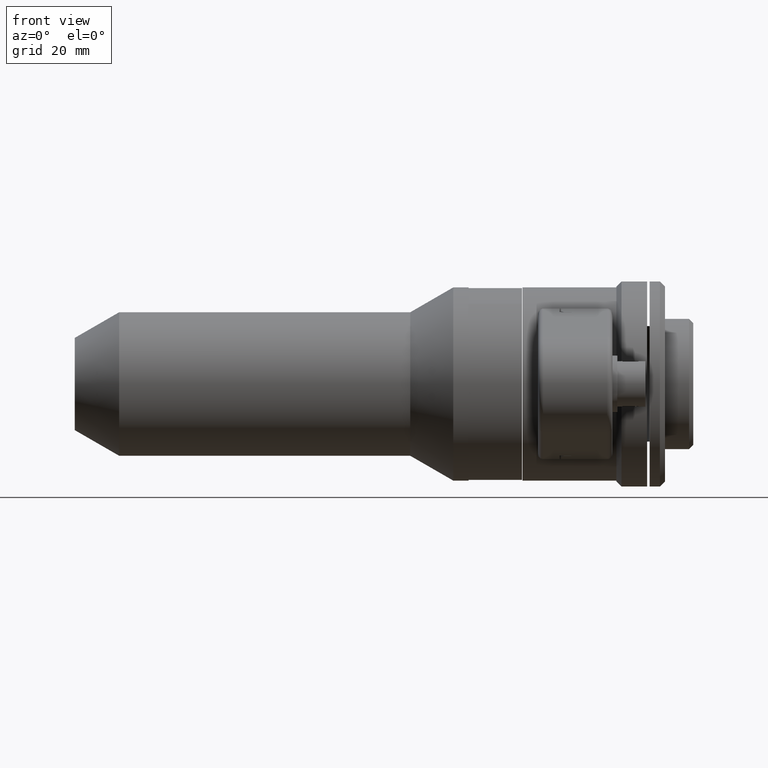
[diagram: clean part render]
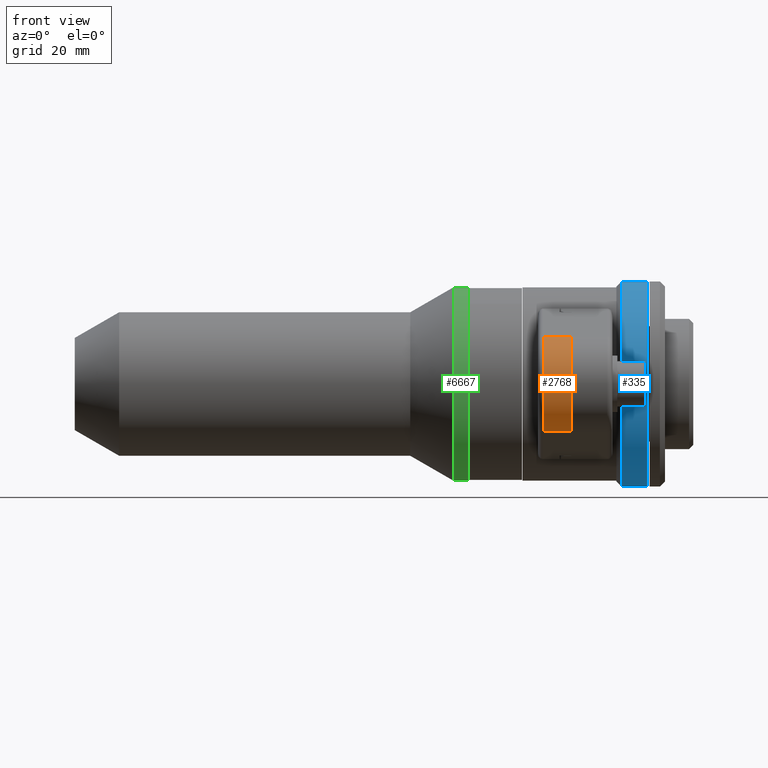
[diagram: same view with three faces highlighted in distinct colors, each labeled with its STEP entity id]
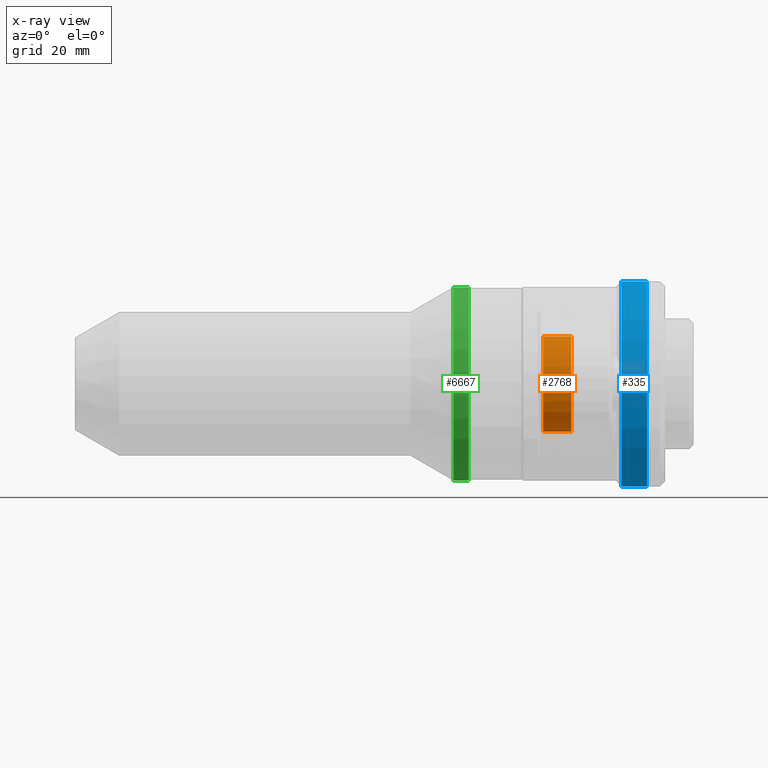
[diagram: x-ray of the same camera — body ghosted, the three highlighted faces saturated]
A machine part, front view with three faces highlighted in distinct colors.
The next image is the same camera in x-ray (body ghosted, the three faces saturated) — at least one of them is partly hidden behind the body in this view.
Their STEP definitions:

[orange] entity #2768 — the highlighted cylindrical surface (partial cylindrical patch) has radius 9.5 mm, axis along (1, -0, -0).
#253 = DIRECTION ( 'NONE',  ( 0.0000000000000000000, -4.086427640349665552E-05, -0.9999999991650554421 ) ) ;
#254 = EDGE_LOOP ( 'NONE', ( #3627, #4351, #1099, #5254 ) ) ;
#459 = CARTESIAN_POINT ( 'NONE',  ( 96.78674100000000635, -35.41589191497096323, 0.001447244797461721966 ) ) ;
#495 = DIRECTION ( 'NONE',  ( 1.000000000000000000, -6.066886243083689077E-24, -5.551114434090462289E-17 ) ) ;
#669 = VERTEX_POINT ( 'NONE', #6621 ) ;
#924 = CIRCLE ( 'NONE', #7816, 9.500000000000007105 ) ;
#1021 = VERTEX_POINT ( 'NONE', #3463 ) ;
#1099 = ORIENTED_EDGE ( 'NONE', *, *, #5951, .T. ) ;
#1292 = EDGE_CURVE ( 'NONE', #1021, #1778, #1467, .T. ) ;
#1303 = CARTESIAN_POINT ( 'NONE',  ( 91.78674100000000635, -37.45463727543159393, -9.277211998606212262 ) ) ;
#1462 = DIRECTION ( 'NONE',  ( 0.0000000000000000000, 4.086427640349665552E-05, 0.9999999991650554421 ) ) ;
#1467 = CIRCLE ( 'NONE', #7832, 9.500000000000007105 ) ;
#1649 = CARTESIAN_POINT ( 'NONE',  ( 96.78674100000000635, -37.45387893723130190, 9.280273080920158790 ) ) ;
#1778 = VERTEX_POINT ( 'NONE', #5892 ) ;
#2670 = CARTESIAN_POINT ( 'NONE',  ( 91.28674100000000635, -35.41589191497096323, 0.001447244797454783072 ) ) ;
#2768 = ADVANCED_FACE ( 'NONE', ( #7929 ), #4737, .T. ) ;
#2888 = VERTEX_POINT ( 'NONE', #1649 ) ;
#2991 = DIRECTION ( 'NONE',  ( 0.0000000000000000000, -4.086427640349665552E-05, -0.9999999991650554421 ) ) ;
#3361 = DIRECTION ( 'NONE',  ( 1.000000000000000000, -6.066886243083689077E-24, -5.551114434090462289E-17 ) ) ;
#3365 = LINE ( 'NONE', #4819, #6432 ) ;
#3463 = CARTESIAN_POINT ( 'NONE',  ( 91.28674100000000635, -37.45387893723130190, 9.280273080920158790 ) ) ;
#3486 = CARTESIAN_POINT ( 'NONE',  ( 91.78674100000000635, -35.41589191497096323, 0.001447244797461721966 ) ) ;
#3627 = ORIENTED_EDGE ( 'NONE', *, *, #5419, .F. ) ;
#3837 = DIRECTION ( 'NONE',  ( 1.000000000000000000, -6.066886243083689077E-24, -5.551114434090462289E-17 ) ) ;
#4278 = DIRECTION ( 'NONE',  ( 1.000000000000000000, -6.066886243083689077E-24, -5.551114434090462289E-17 ) ) ;
#4351 = ORIENTED_EDGE ( 'NONE', *, *, #1292, .T. ) ;
#4573 = AXIS2_PLACEMENT_3D ( 'NONE', #3486, #3361, #253 ) ;
#4628 = LINE ( 'NONE', #1303, #5817 ) ;
#4737 = CYLINDRICAL_SURFACE ( 'NONE', #4573, 9.500000000000007105 ) ;
#4819 = CARTESIAN_POINT ( 'NONE',  ( 91.78674100000000635, -37.45387893723130190, 9.280273080920158790 ) ) ;
#5254 = ORIENTED_EDGE ( 'NONE', *, *, #6570, .F. ) ;
#5419 = EDGE_CURVE ( 'NONE', #1021, #2888, #3365, .T. ) ;
#5817 = VECTOR ( 'NONE', #3837, 1000.000000000000000 ) ;
#5892 = CARTESIAN_POINT ( 'NONE',  ( 91.28674100000000635, -37.45463727543159393, -9.277211998606226473 ) ) ;
#5951 = EDGE_CURVE ( 'NONE', #1778, #669, #4628, .T. ) ;
#6432 = VECTOR ( 'NONE', #495, 1000.000000000000000 ) ;
#6476 = DIRECTION ( 'NONE',  ( 1.000000000000000000, -6.066886243083689077E-24, -5.551114434090462289E-17 ) ) ;
#6570 = EDGE_CURVE ( 'NONE', #2888, #669, #924, .T. ) ;
#6621 = CARTESIAN_POINT ( 'NONE',  ( 96.78674100000000635, -37.45463727543159393, -9.277211998606212262 ) ) ;
#7816 = AXIS2_PLACEMENT_3D ( 'NONE', #459, #4278, #2991 ) ;
#7832 = AXIS2_PLACEMENT_3D ( 'NONE', #2670, #6476, #1462 ) ;
#7929 = FACE_OUTER_BOUND ( 'NONE', #254, .T. ) ;

[blue] entity #335 — the highlighted cylindrical surface (partial cylindrical patch) has radius 20 mm, axis along (1, -0, -0).
#152 = ORIENTED_EDGE ( 'NONE', *, *, #3266, .T. ) ;
#335 = ADVANCED_FACE ( 'NONE', ( #6016 ), #4164, .T. ) ;
#357 = DIRECTION ( 'NONE',  ( 0.0000000000000000000, -2.708338984294550418E-33, -1.000000000000000000 ) ) ;
#492 = LINE ( 'NONE', #3024, #1129 ) ;
#536 = VERTEX_POINT ( 'NONE', #6331 ) ;
#895 = DIRECTION ( 'NONE',  ( 1.000000000000000000, -2.455222655423290339E-17, -1.618727496831748947E-17 ) ) ;
#1129 = VECTOR ( 'NONE', #5547, 1000.000000000000000 ) ;
#1470 = AXIS2_PLACEMENT_3D ( 'NONE', #2973, #5497, #357 ) ;
#1480 = CARTESIAN_POINT ( 'NONE',  ( 106.5667410000000217, 2.498398051403173010E-15, 20.00000000000000000 ) ) ;
#1654 = LINE ( 'NONE', #2783, #5475 ) ;
#1709 = ORIENTED_EDGE ( 'NONE', *, *, #8186, .T. ) ;
#2508 = EDGE_CURVE ( 'NONE', #7400, #536, #3387, .T. ) ;
#2628 = EDGE_CURVE ( 'NONE', #7289, #7400, #492, .T. ) ;
#2710 = CARTESIAN_POINT ( 'NONE',  ( 111.5667410000000217, -7.365667966269816784E-17, -4.856182490495257010E-17 ) ) ;
#2783 = CARTESIAN_POINT ( 'NONE',  ( 111.5667410000000217, -7.365667966269822947E-17, -20.00000000000000000 ) ) ;
#2906 = DIRECTION ( 'NONE',  ( 1.000000000000000000, -2.455222655423290339E-17, -1.618727496831748947E-17 ) ) ;
#2966 = EDGE_LOOP ( 'NONE', ( #3569, #152, #1709, #4568 ) ) ;
#2973 = CARTESIAN_POINT ( 'NONE',  ( 106.5667410000000217, 4.910445310846646623E-17, 3.237454993663494812E-17 ) ) ;
#3024 = CARTESIAN_POINT ( 'NONE',  ( 111.5667410000000217, 2.375636918632008148E-15, 20.00000000000000000 ) ) ;
#3266 = EDGE_CURVE ( 'NONE', #7289, #7847, #6892, .T. ) ;
#3387 = CIRCLE ( 'NONE', #6689, 20.00000000000000000 ) ;
#3569 = ORIENTED_EDGE ( 'NONE', *, *, #2628, .F. ) ;
#3593 = CARTESIAN_POINT ( 'NONE',  ( 111.5667410000000217, 2.437017485017590776E-15, 20.00000000000000000 ) ) ;
#3997 = DIRECTION ( 'NONE',  ( 1.000000000000000000, -2.455222655423290339E-17, -1.618727496831748947E-17 ) ) ;
#4164 = CYLINDRICAL_SURFACE ( 'NONE', #7369, 20.00000000000000000 ) ;
#4568 = ORIENTED_EDGE ( 'NONE', *, *, #2508, .F. ) ;
#5403 = DIRECTION ( 'NONE',  ( 0.0000000000000000000, -3.009265538105056020E-33, -1.000000000000000000 ) ) ;
#5475 = VECTOR ( 'NONE', #2906, 1000.000000000000000 ) ;
#5497 = DIRECTION ( 'NONE',  ( 1.000000000000000000, -2.455222655423290339E-17, -1.618727496831748947E-17 ) ) ;
#5547 = DIRECTION ( 'NONE',  ( 1.000000000000000000, -2.455222655423290339E-17, -1.618727496831748947E-17 ) ) ;
#6016 = FACE_OUTER_BOUND ( 'NONE', #2966, .T. ) ;
#6331 = CARTESIAN_POINT ( 'NONE',  ( 111.5667410000000217, -7.365667966269822947E-17, -20.00000000000000000 ) ) ;
#6566 = CARTESIAN_POINT ( 'NONE',  ( 111.5667410000000217, -7.365667966269816784E-17, -4.856182490495257010E-17 ) ) ;
#6689 = AXIS2_PLACEMENT_3D ( 'NONE', #2710, #3997, #7776 ) ;
#6892 = CIRCLE ( 'NONE', #1470, 20.00000000000000000 ) ;
#7289 = VERTEX_POINT ( 'NONE', #1480 ) ;
#7369 = AXIS2_PLACEMENT_3D ( 'NONE', #6566, #895, #5403 ) ;
#7400 = VERTEX_POINT ( 'NONE', #3593 ) ;
#7776 = DIRECTION ( 'NONE',  ( 0.0000000000000000000, -3.009265538105056020E-33, -1.000000000000000000 ) ) ;
#7847 = VERTEX_POINT ( 'NONE', #7859 ) ;
#7859 = CARTESIAN_POINT ( 'NONE',  ( 106.5667410000000217, 4.910445310846625052E-17, -20.00000000000000000 ) ) ;
#8186 = EDGE_CURVE ( 'NONE', #7847, #536, #1654, .T. ) ;

[green] entity #6667 — the highlighted cylindrical surface (partial cylindrical patch) has radius 18.85 mm, axis along (-1, 0, 0).
#122 = FACE_OUTER_BOUND ( 'NONE', #1677, .T. ) ;
#311 = CIRCLE ( 'NONE', #5209, 18.85000000000000142 ) ;
#502 = DIRECTION ( 'NONE',  ( 0.0000000000000000000, 0.0000000000000000000, 1.000000000000000000 ) ) ;
#542 = DIRECTION ( 'NONE',  ( -1.000000000000000000, 0.0000000000000000000, 0.0000000000000000000 ) ) ;
#554 = VERTEX_POINT ( 'NONE', #5051 ) ;
#914 = CARTESIAN_POINT ( 'NONE',  ( 76.75334641670902158, 0.0000000000000000000, 1.232595164407830946E-29 ) ) ;
#1349 = VECTOR ( 'NONE', #6440, 1000.000000000000000 ) ;
#1524 = VERTEX_POINT ( 'NONE', #2109 ) ;
#1677 = EDGE_LOOP ( 'NONE', ( #3127, #7282, #6540, #5641 ) ) ;
#1872 = EDGE_CURVE ( 'NONE', #1524, #3465, #6639, .T. ) ;
#2005 = CARTESIAN_POINT ( 'NONE',  ( 0.0000000000000000000, 2.308459216392761329E-15, -18.85000000000000142 ) ) ;
#2109 = CARTESIAN_POINT ( 'NONE',  ( 76.75334641670902158, 0.0000000000000000000, 18.85000000000000142 ) ) ;
#2142 = VERTEX_POINT ( 'NONE', #6573 ) ;
#2312 = DIRECTION ( 'NONE',  ( -1.000000000000000000, 0.0000000000000000000, 0.0000000000000000000 ) ) ;
#2589 = LINE ( 'NONE', #2005, #1349 ) ;
#2610 = DIRECTION ( 'NONE',  ( 0.0000000000000000000, 0.0000000000000000000, 1.000000000000000000 ) ) ;
#2862 = AXIS2_PLACEMENT_3D ( 'NONE', #914, #2312, #6668 ) ;
#3127 = ORIENTED_EDGE ( 'NONE', *, *, #4748, .F. ) ;
#3231 = DIRECTION ( 'NONE',  ( -1.000000000000000000, 0.0000000000000000000, 0.0000000000000000000 ) ) ;
#3465 = VERTEX_POINT ( 'NONE', #7111 ) ;
#4748 = EDGE_CURVE ( 'NONE', #2142, #554, #2589, .T. ) ;
#5051 = CARTESIAN_POINT ( 'NONE',  ( 73.75334641670900737, 0.0000000000000000000, -18.85000000000000142 ) ) ;
#5209 = AXIS2_PLACEMENT_3D ( 'NONE', #8135, #5642, #502 ) ;
#5294 = AXIS2_PLACEMENT_3D ( 'NONE', #7638, #3231, #2610 ) ;
#5641 = ORIENTED_EDGE ( 'NONE', *, *, #7945, .F. ) ;
#5642 = DIRECTION ( 'NONE',  ( -1.000000000000000000, 0.0000000000000000000, 0.0000000000000000000 ) ) ;
#5814 = EDGE_CURVE ( 'NONE', #2142, #1524, #7367, .T. ) ;
#6440 = DIRECTION ( 'NONE',  ( -1.000000000000000000, 0.0000000000000000000, 0.0000000000000000000 ) ) ;
#6540 = ORIENTED_EDGE ( 'NONE', *, *, #1872, .T. ) ;
#6573 = CARTESIAN_POINT ( 'NONE',  ( 76.75334641670902158, 2.308459216392761329E-15, -18.85000000000000142 ) ) ;
#6639 = LINE ( 'NONE', #7854, #7759 ) ;
#6667 = ADVANCED_FACE ( 'NONE', ( #122 ), #7716, .T. ) ;
#6668 = DIRECTION ( 'NONE',  ( 0.0000000000000000000, 0.0000000000000000000, 1.000000000000000000 ) ) ;
#7111 = CARTESIAN_POINT ( 'NONE',  ( 73.75334641670900737, 2.308459216392761329E-15, 18.85000000000000142 ) ) ;
#7282 = ORIENTED_EDGE ( 'NONE', *, *, #5814, .T. ) ;
#7367 = CIRCLE ( 'NONE', #2862, 18.85000000000000142 ) ;
#7638 = CARTESIAN_POINT ( 'NONE',  ( 0.0000000000000000000, 0.0000000000000000000, 0.0000000000000000000 ) ) ;
#7716 = CYLINDRICAL_SURFACE ( 'NONE', #5294, 18.85000000000000142 ) ;
#7759 = VECTOR ( 'NONE', #542, 1000.000000000000000 ) ;
#7854 = CARTESIAN_POINT ( 'NONE',  ( 0.0000000000000000000, 0.0000000000000000000, 18.85000000000000142 ) ) ;
#7945 = EDGE_CURVE ( 'NONE', #554, #3465, #311, .T. ) ;
#8135 = CARTESIAN_POINT ( 'NONE',  ( 73.75334641670900737, 0.0000000000000000000, 1.232595164407830946E-29 ) ) ;